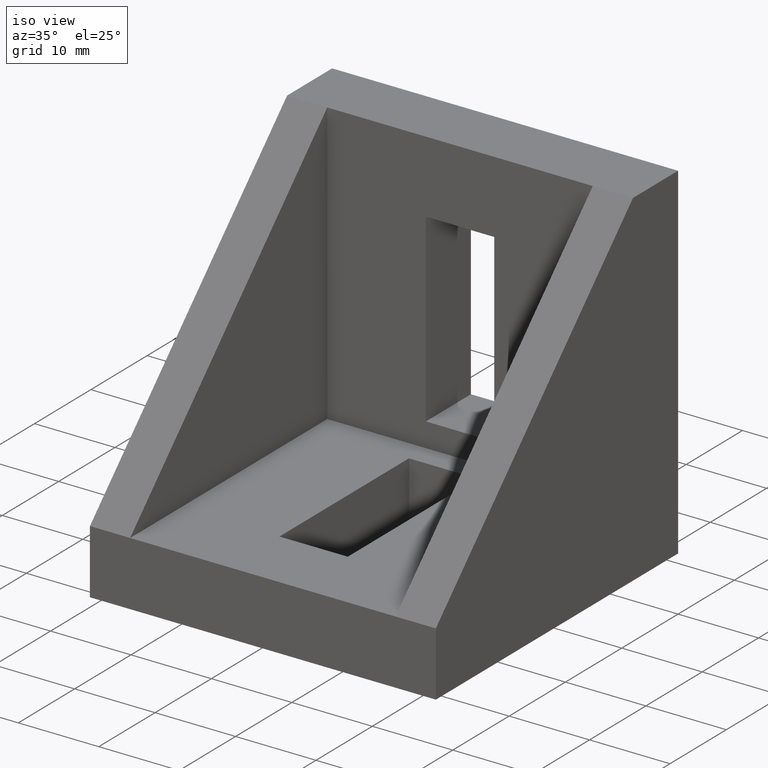
[diagram: clean part render]
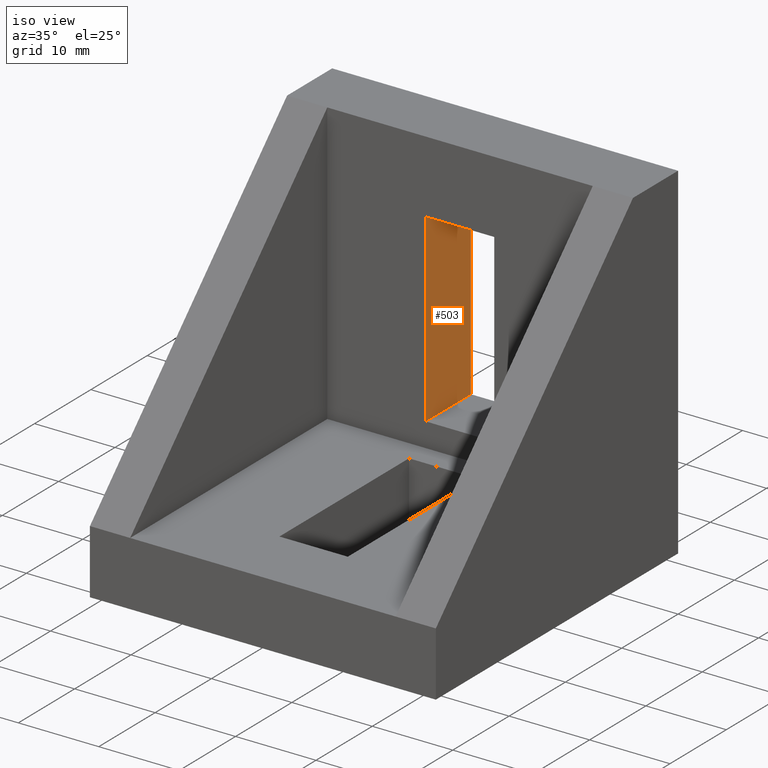
[diagram: same view with one face highlighted and labeled with its STEP entity id]
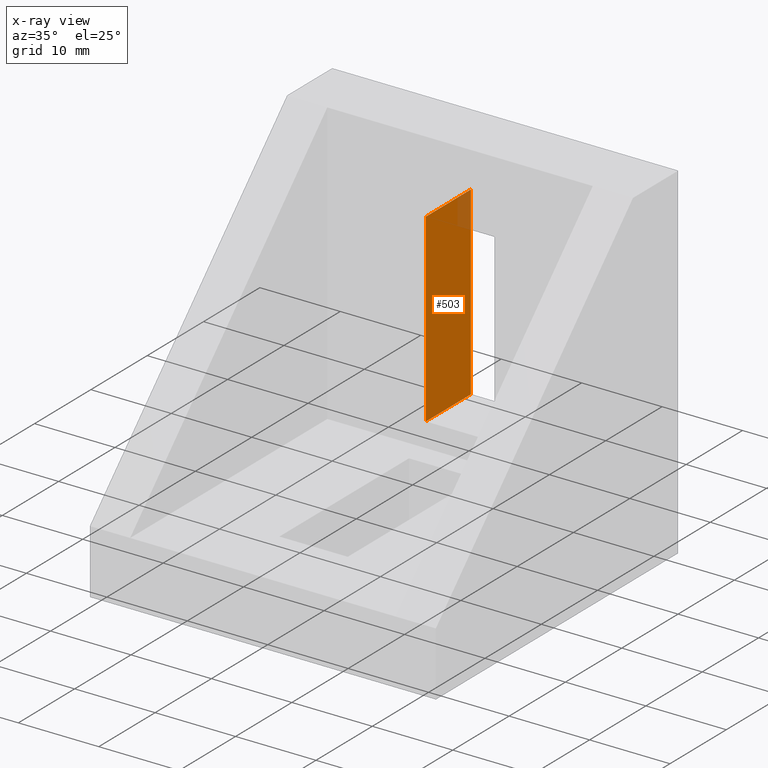
[diagram: x-ray of the same camera — body ghosted, the highlighted face saturated]
A machine part, iso view. The second image highlights one B-rep face of the part: STEP entity #503.
The next image is the same camera in x-ray: the body ghosted, the highlighted face saturated — about 5% of this face is hidden behind the body in this view.
In plain terms, the highlighted planar face has unit normal (1, 0, -0).
Its self-contained STEP definition (entity closure, byte-faithful):
#244=CARTESIAN_POINT('',(17.250000504411069,1.140545E-013,33.999998999743426));
#245=VERTEX_POINT('',#244);
#254=CARTESIAN_POINT('',(17.249999910790972,1.131664E-013,10.999998999835292));
#255=VERTEX_POINT('',#254);
#256=CARTESIAN_POINT('',(17.249999910790972,1.131664E-013,10.999998999835292));
#257=DIRECTION('',(0.000000025809569,3.160761E-024,1.000000000000000));
#258=VECTOR('',#257,22.999999999908141);
#259=LINE('',#256,#258);
#260=EDGE_CURVE('',#255,#245,#259,.T.);
#345=CARTESIAN_POINT('',(17.249999910790972,-7.999999999967882,10.999998999835292));
#346=VERTEX_POINT('',#345);
#353=CARTESIAN_POINT('',(17.250000504411069,-7.999999999967881,33.999998999743426));
#354=VERTEX_POINT('',#353);
#355=CARTESIAN_POINT('',(17.250000504411069,-7.999999999967881,33.999998999743426));
#356=DIRECTION('',(-0.000000025809569,0.0,-1.000000000000000));
#357=VECTOR('',#356,22.999999999908141);
#358=LINE('',#355,#357);
#359=EDGE_CURVE('',#354,#346,#358,.T.);
#453=CARTESIAN_POINT('',(17.250000504411069,1.136868E-013,33.999998999743426));
#454=DIRECTION('',(0.0,-1.0,0.0));
#455=VECTOR('',#454,7.999999999967995);
#456=LINE('',#453,#455);
#457=EDGE_CURVE('',#245,#354,#456,.T.);
#482=CARTESIAN_POINT('',(17.249999910790972,-7.999999999967882,10.999998999835292));
#483=DIRECTION('',(0.0,1.0,0.0));
#484=VECTOR('',#483,7.999999999967995);
#485=LINE('',#482,#484);
#486=EDGE_CURVE('',#346,#255,#485,.T.);
#492=CARTESIAN_POINT('',(17.249999851428836,0.800004724464610,8.699994275375008));
#493=DIRECTION('',(1.000000000000000,1.224647E-016,-0.000000025809569));
#494=DIRECTION('',(0.000000025809569,3.160761E-024,1.000000000000000));
#495=AXIS2_PLACEMENT_3D('',#492,#493,#494);
#496=PLANE('',#495);
#497=ORIENTED_EDGE('',*,*,#359,.T.);
#498=ORIENTED_EDGE('',*,*,#486,.T.);
#499=ORIENTED_EDGE('',*,*,#260,.T.);
#500=ORIENTED_EDGE('',*,*,#457,.T.);
#501=EDGE_LOOP('',(#497,#498,#499,#500));
#502=FACE_OUTER_BOUND('',#501,.T.);
#503=ADVANCED_FACE('',(#502),#496,.T.);